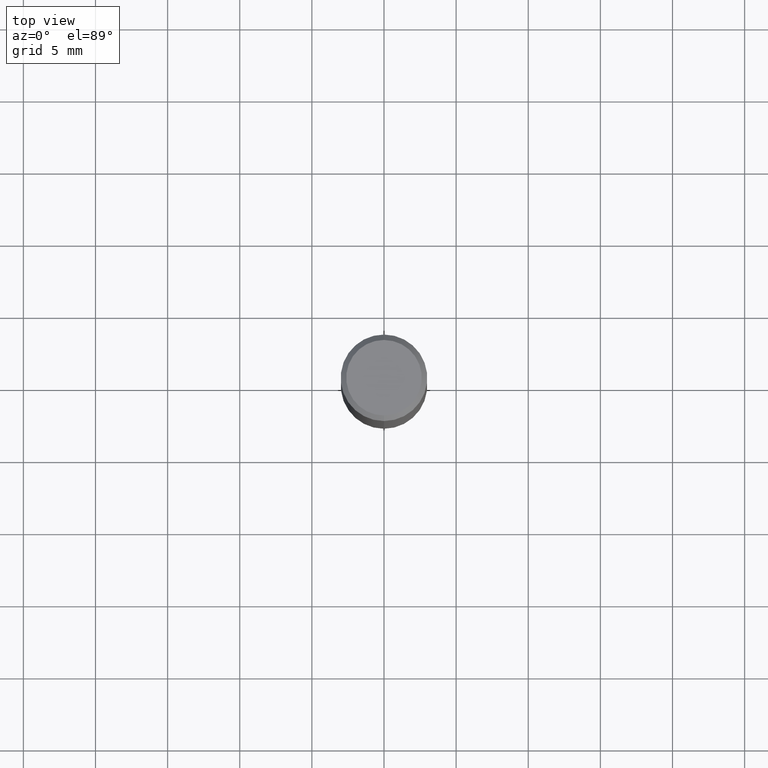
[diagram: clean part render]
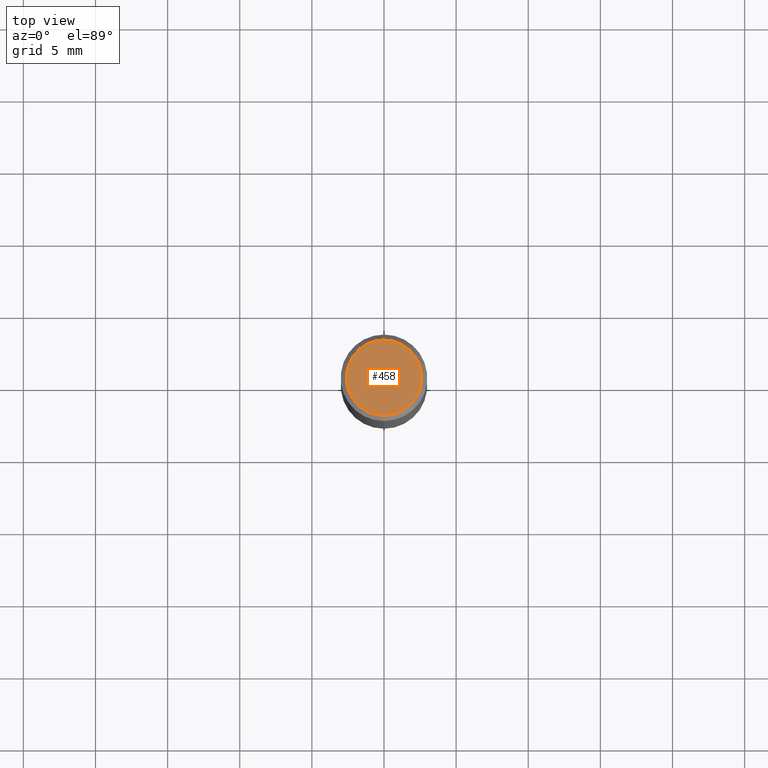
[diagram: same view with one face highlighted and labeled with its STEP entity id]
A machine part, top view. The second image highlights one B-rep face of the part: STEP entity #458.
In plain terms, the highlighted planar face has unit normal (0, -0, -1).
Its self-contained STEP definition (entity closure, byte-faithful):
#26 = DIRECTION ( 'NONE',  ( -6.982962677686265922E-15, -1.000000000000000000, 3.491333648630222721E-15 ) ) ;
#60 = DIRECTION ( 'NONE',  ( 2.445571937709606137E-29, -3.491333648630222721E-15, -1.000000000000000000 ) ) ;
#61 = ORIENTED_EDGE ( 'NONE', *, *, #94, .T. ) ;
#85 = VERTEX_POINT ( 'NONE', #149 ) ;
#94 = EDGE_CURVE ( 'NONE', #294, #85, #295, .T. ) ;
#123 = EDGE_LOOP ( 'NONE', ( #448, #61 ) ) ;
#136 = DIRECTION ( 'NONE',  ( -2.445571937709606698E-29, 3.491333648630222721E-15, 1.000000000000000000 ) ) ;
#149 = CARTESIAN_POINT ( 'NONE',  ( 7.723156721521010848E-16, 0.1030999999999999833, -4.311523783000284449E-16 ) ) ;
#208 = AXIS2_PLACEMENT_3D ( 'NONE', #447, #60, #254 ) ;
#219 = CARTESIAN_POINT ( 'NONE',  ( 1.741146440717284122E-45, -2.485685684372956849E-31, -7.119587912625256389E-17 ) ) ;
#232 = CIRCLE ( 'NONE', #319, 0.1030999999999999833 ) ;
#254 = DIRECTION ( 'NONE',  ( 6.982962677686265922E-15, 1.000000000000000000, -3.491333648630222721E-15 ) ) ;
#260 = PLANE ( 'NONE',  #208 ) ;
#284 = CARTESIAN_POINT ( 'NONE',  ( -7.587710785535310407E-16, -0.1030999999999999833, 2.887606200475233665E-16 ) ) ;
#294 = VERTEX_POINT ( 'NONE', #284 ) ;
#295 = CIRCLE ( 'NONE', #505, 0.1030999999999999833 ) ;
#297 = DIRECTION ( 'NONE',  ( -6.982962677686265922E-15, -1.000000000000000000, 3.491333648630222721E-15 ) ) ;
#319 = AXIS2_PLACEMENT_3D ( 'NONE', #219, #136, #297 ) ;
#337 = FACE_OUTER_BOUND ( 'NONE', #123, .T. ) ;
#447 = CARTESIAN_POINT ( 'NONE',  ( 7.199434520694539070E-16, 0.1030999999999999833, -3.955544387369021753E-16 ) ) ;
#448 = ORIENTED_EDGE ( 'NONE', *, *, #501, .T. ) ;
#458 = ADVANCED_FACE ( 'NONE', ( #337 ), #260, .F. ) ;
#500 = CARTESIAN_POINT ( 'NONE',  ( 1.741146440717284122E-45, -2.485685684372956849E-31, -7.119587912625256389E-17 ) ) ;
#501 = EDGE_CURVE ( 'NONE', #85, #294, #232, .T. ) ;
#503 = DIRECTION ( 'NONE',  ( -2.445571937709606698E-29, 3.491333648630222721E-15, 1.000000000000000000 ) ) ;
#505 = AXIS2_PLACEMENT_3D ( 'NONE', #500, #503, #26 ) ;